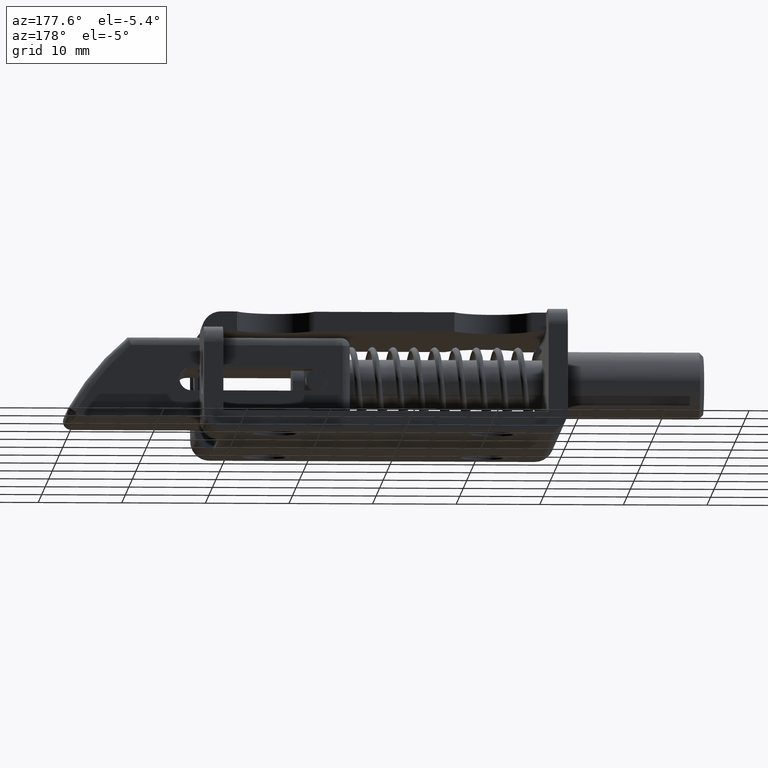
[diagram: clean part render]
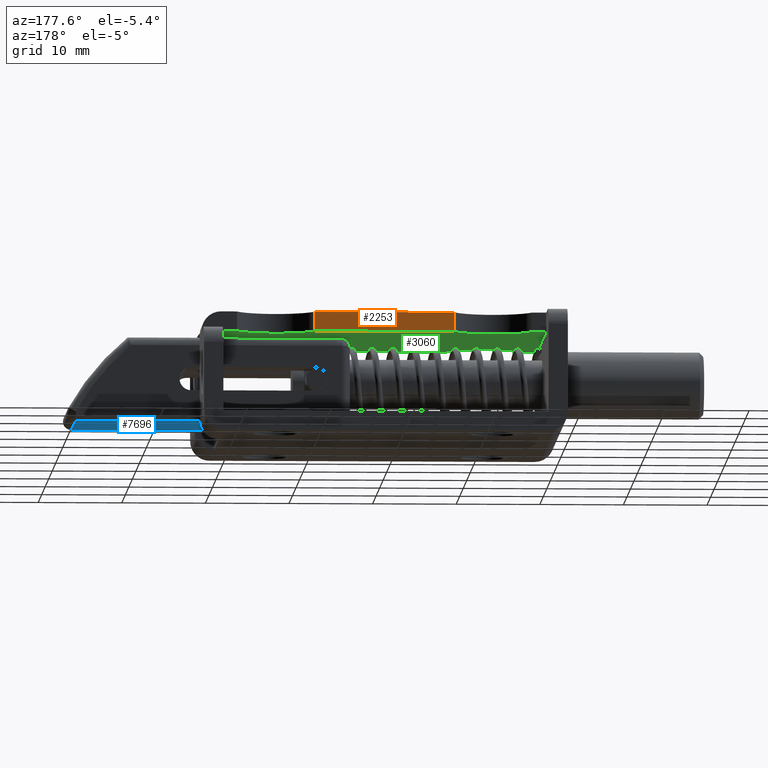
[diagram: same view with three faces highlighted in distinct colors, each labeled with its STEP entity id]
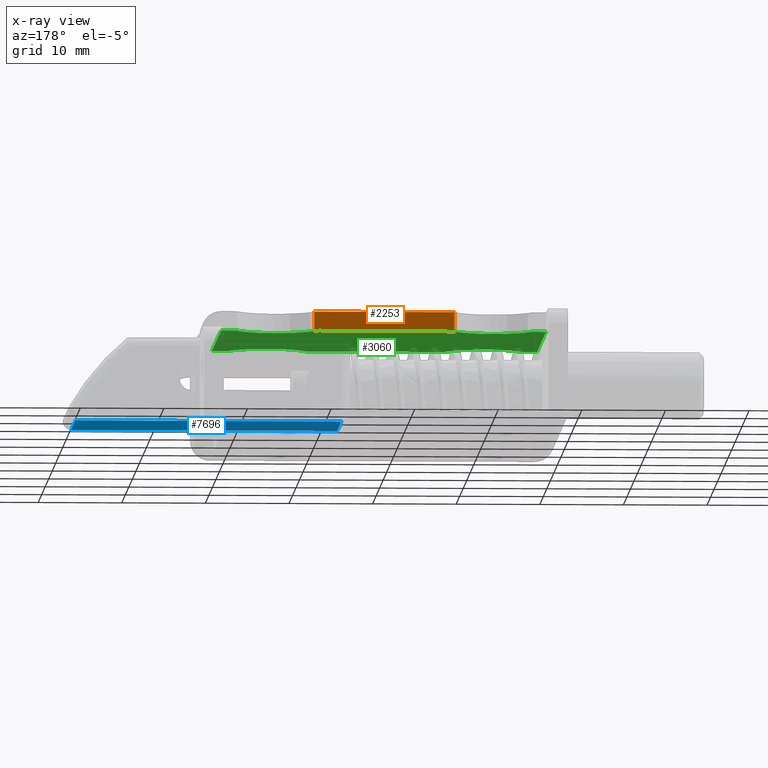
[diagram: x-ray of the same camera — body ghosted, the three highlighted faces saturated]
A machine part, auxiliary view with three faces highlighted in distinct colors.
The next image is the same camera in x-ray (body ghosted, the three faces saturated) — at least one of them is partly hidden behind the body in this view.
Their STEP definitions:

[orange] entity #2253 — the highlighted face is a freeform B-spline surface patch.
#2183=CARTESIAN_POINT('',(30.025068000000100,-5.200000000000090,13.100000000000000));
#2184=VERTEX_POINT('',#2183);
#2200=CARTESIAN_POINT('',(30.025068000000100,-7.500000000000000,13.100000000000000));
#2201=VERTEX_POINT('',#2200);
#2202=CARTESIAN_POINT('',(30.025068000000100,-7.500000000000000,13.100000000000000));
#2203=CARTESIAN_POINT('',(30.025068000000100,-5.200000000000090,13.100000000000000));
#2204=QUASI_UNIFORM_CURVE('',1,(#2202,#2203),.UNSPECIFIED.,.F.,.U.);
#2205=EDGE_CURVE('',#2201,#2184,#2204,.T.);
#2226=CARTESIAN_POINT('',(12.438262582026820,-7.614885003759365,13.100000000000000));
#2227=CARTESIAN_POINT('',(30.861737717489149,-7.614885003759365,13.100000000000000));
#2228=CARTESIAN_POINT('',(12.438262582026820,-5.085114770041098,13.100000000000000));
#2229=CARTESIAN_POINT('',(30.861737717489149,-5.085114770041098,13.100000000000000));
#2230=B_SPLINE_SURFACE_WITH_KNOTS('',1,1,((#2226,#2228),(#2227,#2229)),.UNSPECIFIED.,.F.,.F.,.U.,(2,2),(2,2),(0.0,18.423475135462329),(0.0,2.529770233718267),.UNSPECIFIED.);
#2231=CARTESIAN_POINT('',(13.274932000000099,-5.200000000000090,13.100000000000000));
#2232=VERTEX_POINT('',#2231);
#2233=CARTESIAN_POINT('',(13.274932000000099,-5.200000000000090,13.100000000000000));
#2234=CARTESIAN_POINT('',(30.025068000000100,-5.200000000000090,13.100000000000000));
#2235=QUASI_UNIFORM_CURVE('',1,(#2233,#2234),.UNSPECIFIED.,.F.,.U.);
#2236=EDGE_CURVE('',#2232,#2184,#2235,.T.);
#2237=ORIENTED_EDGE('',*,*,#2236,.F.);
#2238=CARTESIAN_POINT('',(13.274932000000099,-7.500000000000000,13.100000000000000));
#2239=VERTEX_POINT('',#2238);
#2240=CARTESIAN_POINT('',(13.274932000000099,-7.500000000000000,13.100000000000000));
#2241=CARTESIAN_POINT('',(13.274932000000099,-5.200000000000090,13.100000000000000));
#2242=QUASI_UNIFORM_CURVE('',1,(#2240,#2241),.UNSPECIFIED.,.F.,.U.);
#2243=EDGE_CURVE('',#2239,#2232,#2242,.T.);
#2244=ORIENTED_EDGE('',*,*,#2243,.F.);
#2245=CARTESIAN_POINT('',(13.274932000000099,-7.500000000000000,13.100000000000000));
#2246=CARTESIAN_POINT('',(30.025068000000100,-7.500000000000000,13.100000000000000));
#2247=QUASI_UNIFORM_CURVE('',1,(#2245,#2246),.UNSPECIFIED.,.F.,.U.);
#2248=EDGE_CURVE('',#2239,#2201,#2247,.T.);
#2249=ORIENTED_EDGE('',*,*,#2248,.T.);
#2250=ORIENTED_EDGE('',*,*,#2205,.T.);
#2251=EDGE_LOOP('',(#2237,#2244,#2249,#2250));
#2252=FACE_OUTER_BOUND('',#2251,.T.);
#2253=ADVANCED_FACE('',(#2252),#2230,.T.);

[blue] entity #7696 — the highlighted face is a freeform B-spline surface patch.
#6770=CARTESIAN_POINT('',(26.500000000000000,5.0,-6.0));
#6771=VERTEX_POINT('',#6770);
#6880=CARTESIAN_POINT('',(58.299999919620099,5.0,-6.0));
#6881=VERTEX_POINT('',#6880);
#6901=CARTESIAN_POINT('',(58.299999919620099,5.0,-6.0));
#6902=CARTESIAN_POINT('',(26.500000000000000,5.0,-6.0));
#6903=QUASI_UNIFORM_CURVE('',1,(#6901,#6902),.UNSPECIFIED.,.F.,.U.);
#6904=EDGE_CURVE('',#6881,#6771,#6903,.T.);
#6994=CARTESIAN_POINT('',(58.299999919620099,5.0,6.0));
#6995=VERTEX_POINT('',#6994);
#7041=CARTESIAN_POINT('',(26.500000000000000,5.0,6.0));
#7042=VERTEX_POINT('',#7041);
#7064=CARTESIAN_POINT('',(26.500000000000000,5.0,6.0));
#7065=CARTESIAN_POINT('',(58.299999919620099,5.0,6.0));
#7066=QUASI_UNIFORM_CURVE('',1,(#7064,#7065),.UNSPECIFIED.,.F.,.U.);
#7067=EDGE_CURVE('',#7042,#6995,#7066,.T.);
#7534=CARTESIAN_POINT('',(26.500000000000000,5.0,-6.0));
#7535=CARTESIAN_POINT('',(26.500000000000000,5.0,6.0));
#7536=QUASI_UNIFORM_CURVE('',1,(#7534,#7535),.UNSPECIFIED.,.F.,.U.);
#7537=EDGE_CURVE('',#6771,#7042,#7536,.T.);
#7557=CARTESIAN_POINT('',(58.299999919620099,5.0,6.0));
#7558=CARTESIAN_POINT('',(58.299999919620099,5.0,-6.0));
#7559=QUASI_UNIFORM_CURVE('',1,(#7557,#7558),.UNSPECIFIED.,.F.,.U.);
#7560=EDGE_CURVE('',#6995,#6881,#7559,.T.);
#7685=CARTESIAN_POINT('',(24.911590179261481,5.0,6.599399976741671));
#7686=CARTESIAN_POINT('',(24.911590179261481,5.0,-6.599400298606753));
#7687=CARTESIAN_POINT('',(59.888408318787853,5.0,6.599399976741671));
#7688=CARTESIAN_POINT('',(59.888408318787853,5.0,-6.599400298606753));
#7689=B_SPLINE_SURFACE_WITH_KNOTS('',1,1,((#7685,#7687),(#7686,#7688)),.UNSPECIFIED.,.F.,.F.,.U.,(2,2),(2,2),(0.0,13.198800275348420),(0.0,34.976818139526372),.UNSPECIFIED.);
#7690=ORIENTED_EDGE('',*,*,#7537,.T.);
#7691=ORIENTED_EDGE('',*,*,#7067,.T.);
#7692=ORIENTED_EDGE('',*,*,#7560,.T.);
#7693=ORIENTED_EDGE('',*,*,#6904,.T.);
#7694=EDGE_LOOP('',(#7690,#7691,#7692,#7693));
#7695=FACE_OUTER_BOUND('',#7694,.T.);
#7696=ADVANCED_FACE('',(#7695),#7689,.F.);

[green] entity #3060 — the highlighted face is a freeform B-spline surface patch.
#1327=CARTESIAN_POINT('',(2.300000000000110,-5.200000000000090,-13.090000000000000));
#1328=VERTEX_POINT('',#1327);
#1336=CARTESIAN_POINT('',(4.029188382978700,-5.200000000000090,-13.090000000000000));
#1337=VERTEX_POINT('',#1336);
#1338=CARTESIAN_POINT('',(4.029188382978700,-5.200000000000090,-13.090000000000000));
#1339=CARTESIAN_POINT('',(2.300000000000110,-5.200000000000090,-13.090000000000000));
#1340=QUASI_UNIFORM_CURVE('',1,(#1338,#1339),.UNSPECIFIED.,.F.,.U.);
#1341=EDGE_CURVE('',#1337,#1328,#1340,.T.);
#1379=CARTESIAN_POINT('',(4.029188382978700,-5.200000000000090,13.090000000000000));
#1380=VERTEX_POINT('',#1379);
#1386=CARTESIAN_POINT('',(2.300000000000110,-5.200000000000090,13.090000000000000));
#1387=VERTEX_POINT('',#1386);
#1388=CARTESIAN_POINT('',(4.029188382978700,-5.200000000000090,13.090000000000000));
#1389=CARTESIAN_POINT('',(2.300000000000110,-5.200000000000090,13.090000000000000));
#1390=QUASI_UNIFORM_CURVE('',1,(#1388,#1389),.UNSPECIFIED.,.F.,.U.);
#1391=EDGE_CURVE('',#1380,#1387,#1390,.T.);
#1813=CARTESIAN_POINT('',(41.200000000000003,-5.199999999999870,-7.100000000000111));
#1814=VERTEX_POINT('',#1813);
#1833=CARTESIAN_POINT('',(41.200000000000003,-5.199999999999870,7.100000000000001));
#1834=VERTEX_POINT('',#1833);
#1835=CARTESIAN_POINT('',(41.200000000000003,-5.199999999999870,-7.100000000000111));
#1836=CARTESIAN_POINT('',(41.200000000000003,-5.199999999999870,7.100000000000001));
#1837=QUASI_UNIFORM_CURVE('',1,(#1835,#1836),.UNSPECIFIED.,.F.,.U.);
#1838=EDGE_CURVE('',#1814,#1834,#1837,.T.);
#1939=CARTESIAN_POINT('',(41.200000000000003,-5.199999999999900,-13.099999986188941));
#1940=VERTEX_POINT('',#1939);
#1976=CARTESIAN_POINT('',(39.274932420591391,-5.200000000000090,-13.099999972377940));
#1977=VERTEX_POINT('',#1976);
#1983=CARTESIAN_POINT('',(39.274932420591391,-5.200000000000090,-13.099999972377940));
#1984=CARTESIAN_POINT('',(41.200000000000003,-5.199999999999900,-13.099999986188941));
#1985=QUASI_UNIFORM_CURVE('',1,(#1983,#1984),.UNSPECIFIED.,.F.,.U.);
#1986=EDGE_CURVE('',#1977,#1940,#1985,.T.);
#2023=CARTESIAN_POINT('',(30.025068000000100,-5.200000000000090,-13.100000000000000));
#2024=VERTEX_POINT('',#2023);
#2025=CARTESIAN_POINT('',(30.025068000000100,-5.200000000000090,-13.100000000000000));
#2026=CARTESIAN_POINT('',(31.298599824427647,-5.200000000000090,-9.999999954999158));
#2027=CARTESIAN_POINT('',(34.650000067137370,-5.200000000000090,-10.0));
#2028=CARTESIAN_POINT('',(38.001400309847106,-5.200000000000090,-10.000000045000842));
#2029=CARTESIAN_POINT('',(39.274932420591391,-5.200000000000090,-13.099999972377940));
#2037=(BOUNDED_CURVE()B_SPLINE_CURVE(2,(#2025,#2026,#2027,#2028,#2029),.UNSPECIFIED.,.F.,.U.)B_SPLINE_CURVE_WITH_KNOTS((3,2,3),(0.0,0.500000000000000,1.0),.UNSPECIFIED.)CURVE()GEOMETRIC_REPRESENTATION_ITEM()RATIONAL_B_SPLINE_CURVE((1.0,0.830662391692508,1.0,0.830662391692508,1.0))REPRESENTATION_ITEM(''));
#2038=EDGE_CURVE('',#2024,#1977,#2037,.T.);
#2071=CARTESIAN_POINT('',(13.274932000000099,-5.200000000000090,-13.100000000000000));
#2072=VERTEX_POINT('',#2071);
#2073=CARTESIAN_POINT('',(13.274932000000099,-5.200000000000090,-13.100000000000000));
#2074=CARTESIAN_POINT('',(30.025068000000100,-5.200000000000090,-13.100000000000000));
#2075=QUASI_UNIFORM_CURVE('',1,(#2073,#2074),.UNSPECIFIED.,.F.,.U.);
#2076=EDGE_CURVE('',#2072,#2024,#2075,.T.);
#2107=CARTESIAN_POINT('',(41.200000000000003,-5.200000000000090,13.100000000000000));
#2108=VERTEX_POINT('',#2107);
#2128=CARTESIAN_POINT('',(39.274932420591391,-5.200000000000090,13.099999972377940));
#2129=VERTEX_POINT('',#2128);
#2130=CARTESIAN_POINT('',(39.274932420591391,-5.200000000000090,13.099999972377940));
#2131=CARTESIAN_POINT('',(41.200000000000003,-5.200000000000090,13.100000000000000));
#2132=QUASI_UNIFORM_CURVE('',1,(#2130,#2131),.UNSPECIFIED.,.F.,.U.);
#2133=EDGE_CURVE('',#2129,#2108,#2132,.T.);
#2183=CARTESIAN_POINT('',(30.025068000000100,-5.200000000000090,13.100000000000000));
#2184=VERTEX_POINT('',#2183);
#2185=CARTESIAN_POINT('',(30.025068000000100,-5.200000000000090,13.100000000000000));
#2186=CARTESIAN_POINT('',(31.298599824427647,-5.200000000000090,9.999999954999158));
#2187=CARTESIAN_POINT('',(34.650000067137370,-5.200000000000090,10.0));
#2188=CARTESIAN_POINT('',(38.001400309847106,-5.200000000000090,10.000000045000842));
#2189=CARTESIAN_POINT('',(39.274932420591391,-5.200000000000090,13.099999972377940));
#2197=(BOUNDED_CURVE()B_SPLINE_CURVE(2,(#2185,#2186,#2187,#2188,#2189),.UNSPECIFIED.,.F.,.U.)B_SPLINE_CURVE_WITH_KNOTS((3,2,3),(0.0,0.500000000000000,1.0),.UNSPECIFIED.)CURVE()GEOMETRIC_REPRESENTATION_ITEM()RATIONAL_B_SPLINE_CURVE((1.0,0.830662391692508,1.0,0.830662391692508,1.0))REPRESENTATION_ITEM(''));
#2198=EDGE_CURVE('',#2184,#2129,#2197,.T.);
#2231=CARTESIAN_POINT('',(13.274932000000099,-5.200000000000090,13.100000000000000));
#2232=VERTEX_POINT('',#2231);
#2233=CARTESIAN_POINT('',(13.274932000000099,-5.200000000000090,13.100000000000000));
#2234=CARTESIAN_POINT('',(30.025068000000100,-5.200000000000090,13.100000000000000));
#2235=QUASI_UNIFORM_CURVE('',1,(#2233,#2234),.UNSPECIFIED.,.F.,.U.);
#2236=EDGE_CURVE('',#2232,#2184,#2235,.T.);
#2278=CARTESIAN_POINT('',(2.300000000000110,-5.200000000000090,-13.090000000000000));
#2279=CARTESIAN_POINT('',(2.300000000000110,-5.200000000000090,13.090000000000000));
#2280=QUASI_UNIFORM_CURVE('',1,(#2278,#2279),.UNSPECIFIED.,.F.,.U.);
#2281=EDGE_CURVE('',#1328,#1387,#2280,.T.);
#2733=CARTESIAN_POINT('',(41.200000000000003,-5.199999999999900,-13.099999986188941));
#2734=CARTESIAN_POINT('',(41.200000000000003,-5.199999999999870,-7.100000000000111));
#2735=QUASI_UNIFORM_CURVE('',1,(#2733,#2734),.UNSPECIFIED.,.F.,.U.);
#2736=EDGE_CURVE('',#1940,#1814,#2735,.T.);
#2779=CARTESIAN_POINT('',(41.200000000000003,-5.199999999999870,7.100000000000001));
#2780=CARTESIAN_POINT('',(41.200000000000003,-5.200000000000090,13.100000000000000));
#2781=QUASI_UNIFORM_CURVE('',1,(#2779,#2780),.UNSPECIFIED.,.F.,.U.);
#2782=EDGE_CURVE('',#1834,#2108,#2781,.T.);
#2906=CARTESIAN_POINT('',(4.029188382978701,-5.200000000000090,13.090000000000000));
#2907=CARTESIAN_POINT('',(5.307926855058924,-5.200000000000090,9.996382415224867));
#2908=CARTESIAN_POINT('',(8.655407808361126,-5.200000000000090,10.000002924439981));
#2909=CARTESIAN_POINT('',(12.002888761663330,-5.200000000000090,10.003623433655097));
#2910=CARTESIAN_POINT('',(13.274932000000099,-5.200000000000090,13.100000000000000));
#2918=(BOUNDED_CURVE()B_SPLINE_CURVE(2,(#2906,#2907,#2908,#2909,#2910),.UNSPECIFIED.,.F.,.U.)B_SPLINE_CURVE_WITH_KNOTS((3,2,3),(0.0,0.500000000000000,1.0),.UNSPECIFIED.)CURVE()GEOMETRIC_REPRESENTATION_ITEM()RATIONAL_B_SPLINE_CURVE((1.0,0.830963368032820,1.0,0.830963368032820,1.0))REPRESENTATION_ITEM(''));
#2919=EDGE_CURVE('',#1380,#2232,#2918,.T.);
#3020=CARTESIAN_POINT('',(4.029188382978701,-5.200000000000090,-13.090000000000000));
#3021=CARTESIAN_POINT('',(5.307926855058924,-5.200000000000090,-9.996382415224867));
#3022=CARTESIAN_POINT('',(8.655407808361126,-5.200000000000090,-10.000002924439981));
#3023=CARTESIAN_POINT('',(12.002888761663330,-5.200000000000090,-10.003623433655097));
#3024=CARTESIAN_POINT('',(13.274932000000099,-5.200000000000090,-13.100000000000000));
#3032=(BOUNDED_CURVE()B_SPLINE_CURVE(2,(#3020,#3021,#3022,#3023,#3024),.UNSPECIFIED.,.F.,.U.)B_SPLINE_CURVE_WITH_KNOTS((3,2,3),(0.0,0.500000000000000,1.0),.UNSPECIFIED.)CURVE()GEOMETRIC_REPRESENTATION_ITEM()RATIONAL_B_SPLINE_CURVE((1.0,0.830963368032820,1.0,0.830963368032820,1.0))REPRESENTATION_ITEM(''));
#3033=EDGE_CURVE('',#1337,#2072,#3032,.T.);
#3039=CARTESIAN_POINT('',(0.356945075395863,-5.199999999999900,-14.408690441113031));
#3040=CARTESIAN_POINT('',(0.356945075395863,-5.199999999999900,14.408690675359280));
#3041=CARTESIAN_POINT('',(43.143055967983550,-5.199999999999900,-14.408690441113031));
#3042=CARTESIAN_POINT('',(43.143055967983550,-5.199999999999900,14.408690675359280));
#3043=B_SPLINE_SURFACE_WITH_KNOTS('',1,1,((#3039,#3041),(#3040,#3042)),.UNSPECIFIED.,.F.,.F.,.U.,(2,2),(2,2),(0.0,28.817381116472308),(0.0,42.786110892587693),.UNSPECIFIED.);
#3044=ORIENTED_EDGE('',*,*,#3033,.F.);
#3045=ORIENTED_EDGE('',*,*,#1341,.T.);
#3046=ORIENTED_EDGE('',*,*,#2281,.T.);
#3047=ORIENTED_EDGE('',*,*,#1391,.F.);
#3048=ORIENTED_EDGE('',*,*,#2919,.T.);
#3049=ORIENTED_EDGE('',*,*,#2236,.T.);
#3050=ORIENTED_EDGE('',*,*,#2198,.T.);
#3051=ORIENTED_EDGE('',*,*,#2133,.T.);
#3052=ORIENTED_EDGE('',*,*,#2782,.F.);
#3053=ORIENTED_EDGE('',*,*,#1838,.F.);
#3054=ORIENTED_EDGE('',*,*,#2736,.F.);
#3055=ORIENTED_EDGE('',*,*,#1986,.F.);
#3056=ORIENTED_EDGE('',*,*,#2038,.F.);
#3057=ORIENTED_EDGE('',*,*,#2076,.F.);
#3058=EDGE_LOOP('',(#3044,#3045,#3046,#3047,#3048,#3049,#3050,#3051,#3052,#3053,#3054,#3055,#3056,#3057));
#3059=FACE_OUTER_BOUND('',#3058,.T.);
#3060=ADVANCED_FACE('',(#3059),#3043,.T.);